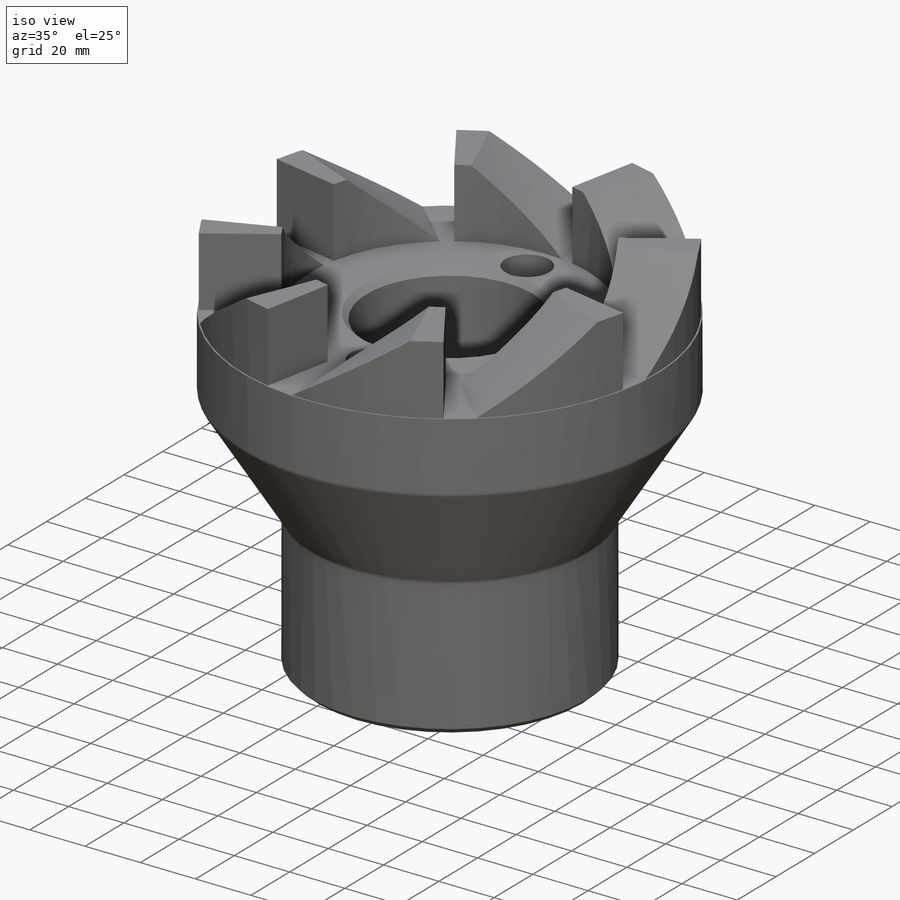
[diagram: iso view]
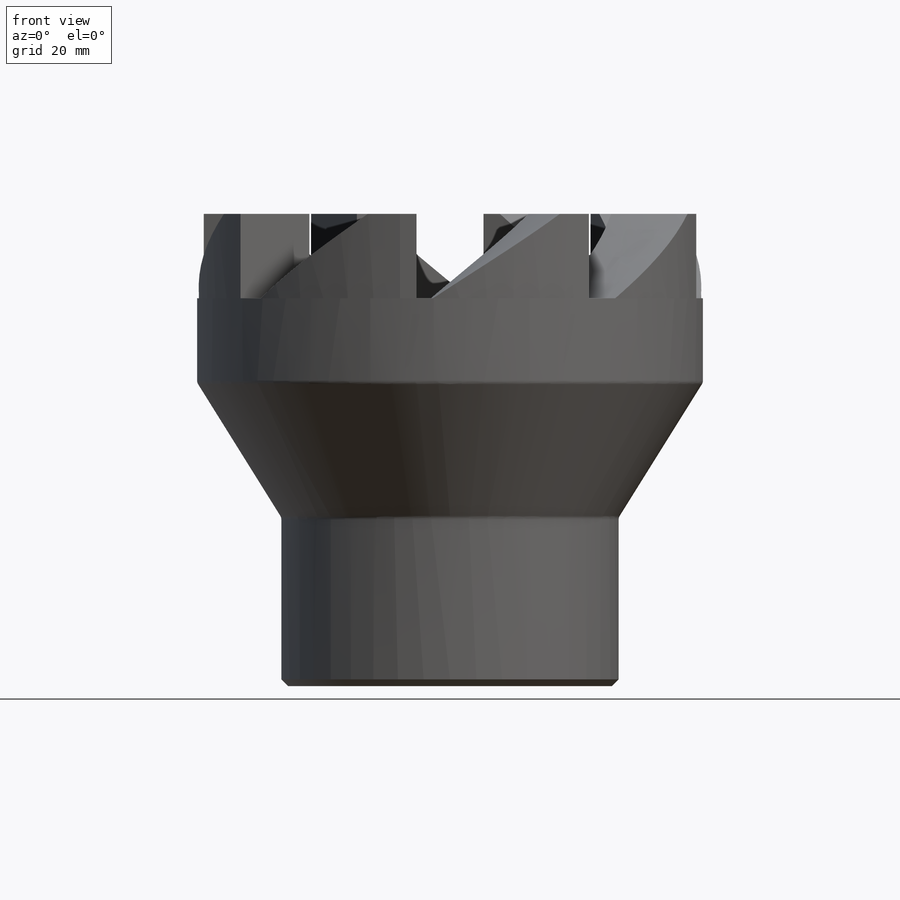
[diagram: front view]
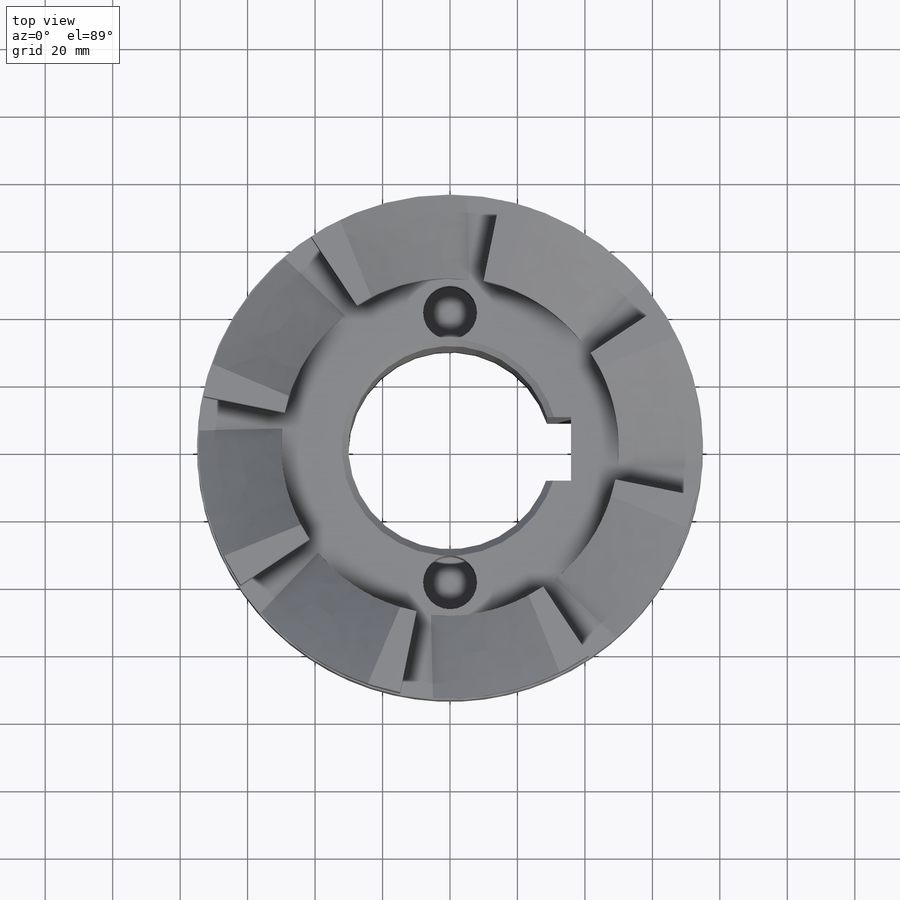
[diagram: top view]
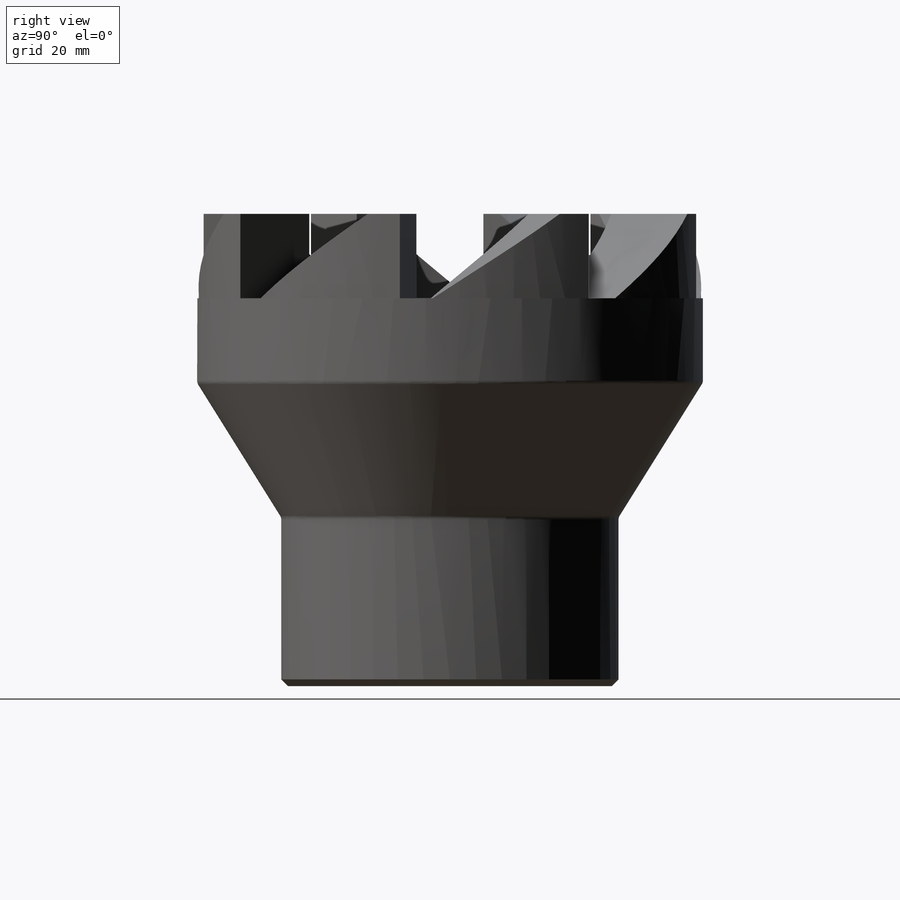
[diagram: right view]
SOLIDWORKS PART (.sldprt)
format: sldprt  version: not decoded by parser v0  size: 524,288 bytes
history: native  units: mm
features: sketch x16, cut_extrude x9, extrude x4, chamfer x2, material x1, cut_revolve x1, pattern_circular x1, fillet x1 (+11 scaffold rows collapsed)
feature tree (46):
  scaffold x11  (default folders/planes/origin — collapsed)
  material  "Plain Carbon Steel"
  sketch  "Sketch1"  dims[D1=100.0mm]
  extrude  "Boss-Extrude1"  Depth=50mm
  sketch  "Sketch2"  dims[D1=150.0mm]
  extrude  "Boss-Extrude2"  Depth=40mm
  sketch  "Sketch3"  dims[c1.D1=~47.169906mm c2.D1=~147.994617deg]
  cut_revolve  "Cut-Revolve1"  Angle=360deg
  sketch  "Sketch4"  dims[D1=0.0mm]
  extrude  "Boss-Extrude3"  Depth=25mm
  sketch  "Sketch6"  dims[D1=60.25mm]
  cut_extrude  "Cut-Extrude1"  [1 undecoded]
  sketch  "Sketch9"  dims[c1.D2=100.0mm c1.D1=~3.096654mm c1.D3=~9.221151mm c2.D1=5.0mm c2.D2=~33.470394mm c3.D1=5.0mm c3.D3=10.0mm]
  extrude  "Boss-Extrude4"  Depth=25mm
  sketch  "Sketch11"  dims[D1=10.0mm D2=5.0mm]
  cut_extrude  "Cut-Extrude9"  [1 undecoded]
  sketch  "Sketch12"  dims[D1=0.0mm]
  sketch  "3DSketch1"  dims[c1.D1=3.582mm c2.D1=20.99mm]
  sketch  "Sketch13"
  cut_extrude  "Cut-Extrude5"  Depth=25mm
  sketch  "Sketch14"  dims[D1=100.0mm]
  cut_extrude  "Cut-Extrude6"  [1 undecoded]
  sketch  "Sketch15"
  cut_extrude  "Cut-Extrude7"  [1 undecoded]
  sketch  "Sketch16"
  cut_extrude  "Cut-Extrude8"  [1 undecoded]
  sketch  "Sketch18"  dims[D1=0.5mm]
  cut_extrude  "Cut-Extrude10"  [1 undecoded]
  pattern_circular  "CirPattern1"  Count=8 Angle=360deg
  sketch  "Sketch19"  dims[D2=16.0mm D1=40.0mm]
  cut_extrude  "Cut-Extrude11"  Depth=30mm
  sketch  "Sketch20"  dims[D1=66.0mm D2=9.0mm]
  cut_extrude  "Cut-Extrude13"  [1 undecoded]
  chamfer  "Chamfer1"  Distance=2mm Angle=45deg
  fillet  "Fillet1"  Radius=2mm
  chamfer  "Chamfer2"  Distance=2mm Angle=45deg
decode coverage: 24 of 34 modeling features carry decoded parameters
note: ~ marks probable driven/reference dimensions
note: 7 parameter values undecoded
summary: no parameter record found for 7 features
note: suppression state not decoded; provenance and decode notes live in map.json
